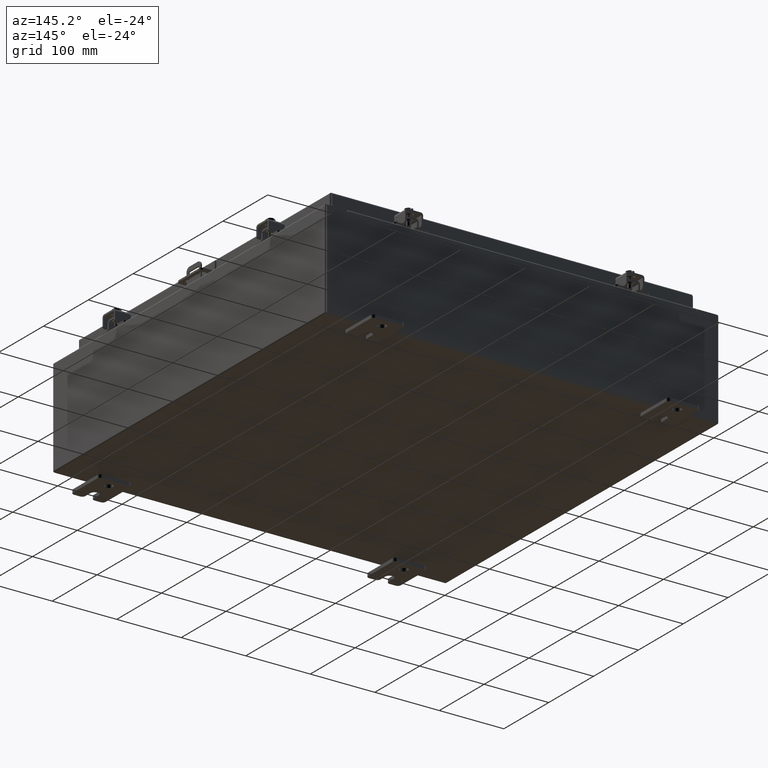
[diagram: clean part render]
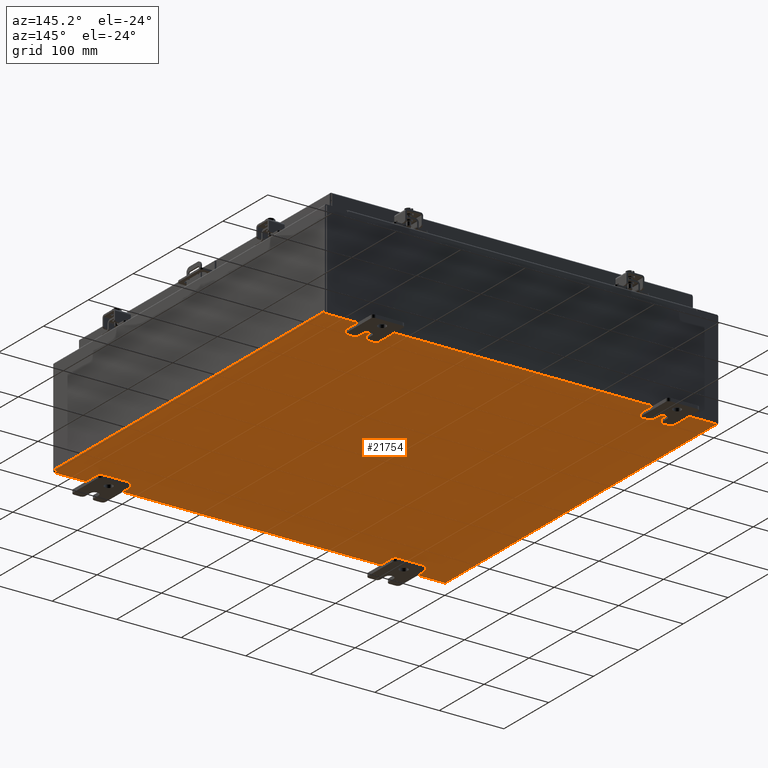
[diagram: same view with one face highlighted and labeled with its STEP entity id]
A machine part, auxiliary view. The second image highlights one B-rep face of the part: STEP entity #21754.
In plain terms, the highlighted planar face has unit normal (0, 0, -1).
Its self-contained STEP definition (entity closure, byte-faithful):
#436 = DIRECTION ( 'NONE',  ( -1.000000000000000000, 0.0000000000000000000, -0.0000000000000000000 ) ) ;
#862 = CARTESIAN_POINT ( 'NONE',  ( -11.91230000000000400, -11.92530000000000400, -0.07469999999999994700 ) ) ;
#878 = VECTOR ( 'NONE', #21552, 39.37007874015748100 ) ;
#1607 = CARTESIAN_POINT ( 'NONE',  ( 11.91229999999999800, 11.92529999999999600, -0.07469999999999994700 ) ) ;
#1875 = LINE ( 'NONE', #862, #29347 ) ;
#2768 = CARTESIAN_POINT ( 'NONE',  ( -11.91230000000000400, -11.92530000000000000, -0.07469999999999994700 ) ) ;
#5189 = ORIENTED_EDGE ( 'NONE', *, *, #21762, .F. ) ;
#6839 = CARTESIAN_POINT ( 'NONE',  ( -11.91230000000000400, 11.92529999999999800, -0.07470000000000000300 ) ) ;
#7537 = VERTEX_POINT ( 'NONE', #26002 ) ;
#9290 = LINE ( 'NONE', #30795, #878 ) ;
#9953 = VERTEX_POINT ( 'NONE', #6839 ) ;
#10196 = ORIENTED_EDGE ( 'NONE', *, *, #12653, .T. ) ;
#10730 = DIRECTION ( 'NONE',  ( -1.000000000000000000, -0.0000000000000000000, -0.0000000000000000000 ) ) ;
#10826 = CARTESIAN_POINT ( 'NONE',  ( -12.00000000000000400, 11.92529999999999800, -0.07470000000000000300 ) ) ;
#10873 = DIRECTION ( 'NONE',  ( 0.0000000000000000000, 0.0000000000000000000, -1.000000000000000000 ) ) ;
#12053 = CARTESIAN_POINT ( 'NONE',  ( 11.91229999999999800, 11.92529999999999800, -0.07469999999999994700 ) ) ;
#12642 = VERTEX_POINT ( 'NONE', #2768 ) ;
#12653 = EDGE_CURVE ( 'NONE', #12642, #9953, #1875, .T. ) ;
#18666 = FACE_OUTER_BOUND ( 'NONE', #32196, .T. ) ;
#20421 = EDGE_CURVE ( 'NONE', #12642, #7537, #9290, .T. ) ;
#21552 = DIRECTION ( 'NONE',  ( 1.000000000000000000, 0.0000000000000000000, 0.0000000000000000000 ) ) ;
#21754 = ADVANCED_FACE ( 'NONE', ( #18666 ), #27524, .T. ) ;
#21762 = EDGE_CURVE ( 'NONE', #22105, #9953, #25163, .T. ) ;
#22105 = VERTEX_POINT ( 'NONE', #1607 ) ;
#22408 = DIRECTION ( 'NONE',  ( -0.0000000000000000000, 1.000000000000000000, -0.0000000000000000000 ) ) ;
#23511 = ORIENTED_EDGE ( 'NONE', *, *, #20421, .F. ) ;
#24042 = AXIS2_PLACEMENT_3D ( 'NONE', #27252, #10873, #436 ) ;
#24067 = VECTOR ( 'NONE', #10730, 39.37007874015748100 ) ;
#25163 = LINE ( 'NONE', #10826, #24067 ) ;
#26002 = CARTESIAN_POINT ( 'NONE',  ( 11.91229999999998900, -11.92530000000000400, -0.07470000000000000300 ) ) ;
#26956 = EDGE_CURVE ( 'NONE', #22105, #7537, #31002, .T. ) ;
#27252 = CARTESIAN_POINT ( 'NONE',  ( 0.0000000000000000000, 0.0000000000000000000, -0.07470000000000000300 ) ) ;
#27524 = PLANE ( 'NONE',  #24042 ) ;
#28915 = ORIENTED_EDGE ( 'NONE', *, *, #26956, .T. ) ;
#29347 = VECTOR ( 'NONE', #22408, 39.37007874015748100 ) ;
#30795 = CARTESIAN_POINT ( 'NONE',  ( -12.00000000000000400, -11.92530000000000400, -0.07470000000000000300 ) ) ;
#31002 = LINE ( 'NONE', #12053, #31949 ) ;
#31675 = DIRECTION ( 'NONE',  ( -0.0000000000000000000, -1.000000000000000000, -0.0000000000000000000 ) ) ;
#31949 = VECTOR ( 'NONE', #31675, 39.37007874015748100 ) ;
#32196 = EDGE_LOOP ( 'NONE', ( #23511, #10196, #5189, #28915 ) ) ;